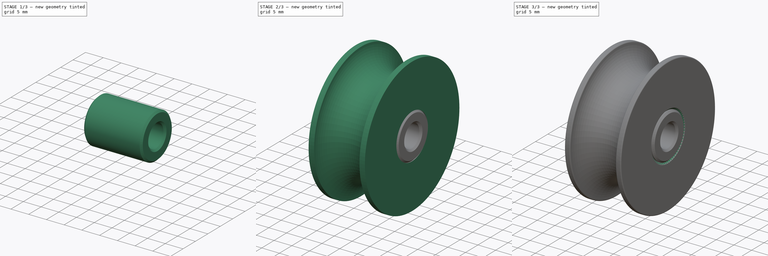
[diagram: build sequence overview — one tinted view per stage of 3, left to right]
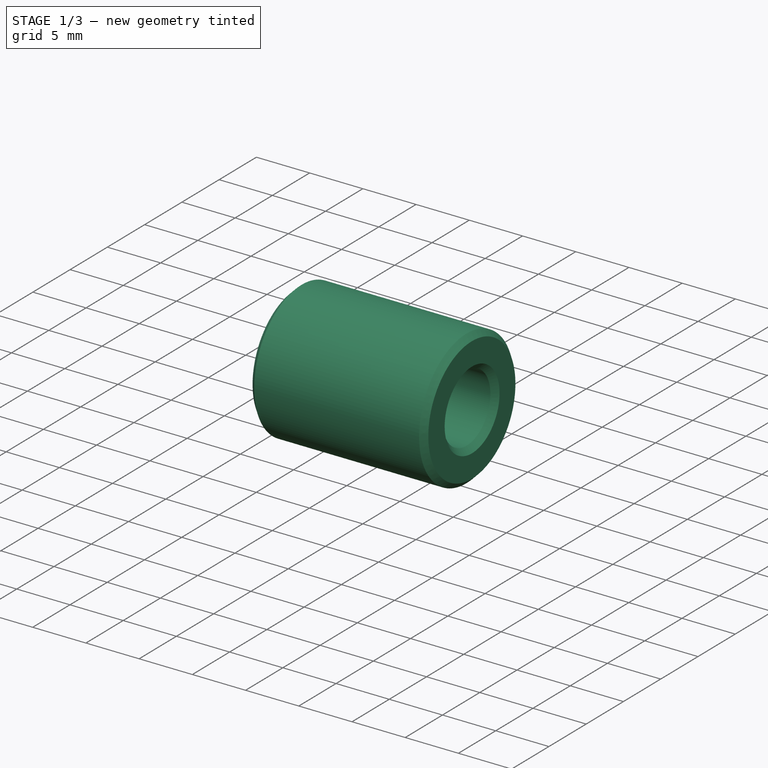
[diagram: stage 1 of 3 — iso view after this stage's code; geometry added in this stage tinted green]
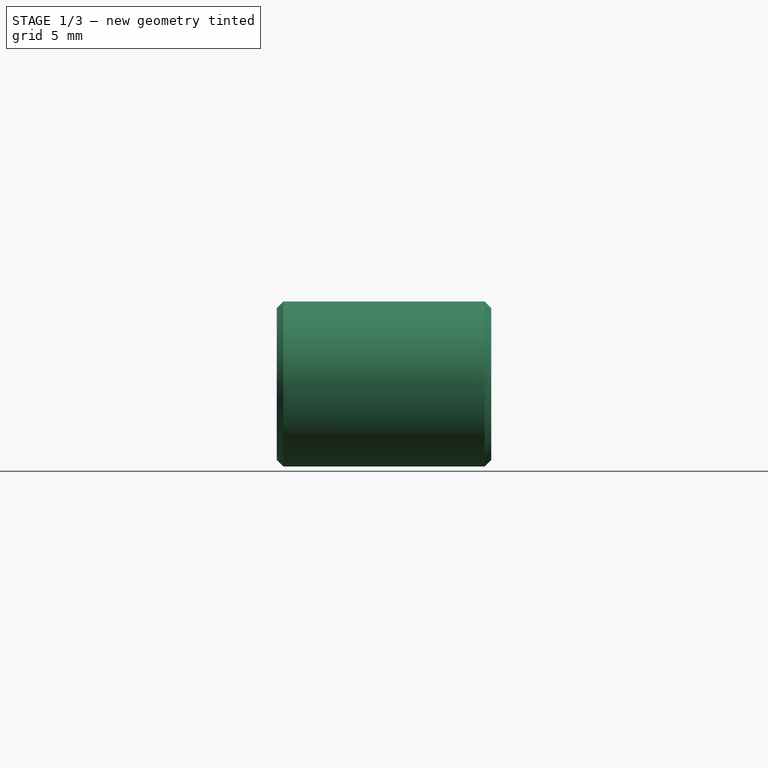
[diagram: stage 1 of 3 — front view after this stage's code; geometry added in this stage tinted green]
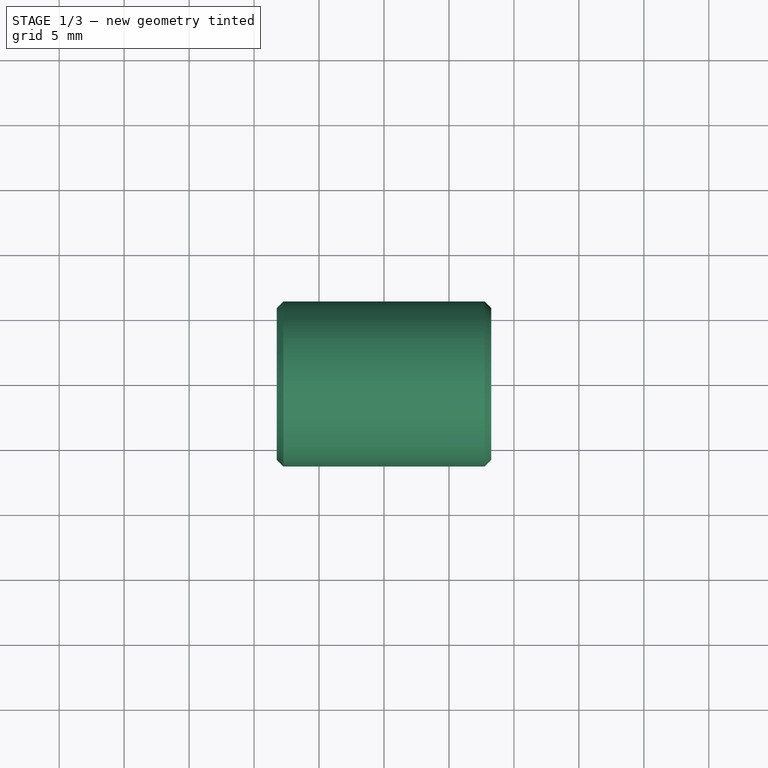
[diagram: stage 1 of 3 — top view after this stage's code; geometry added in this stage tinted green]
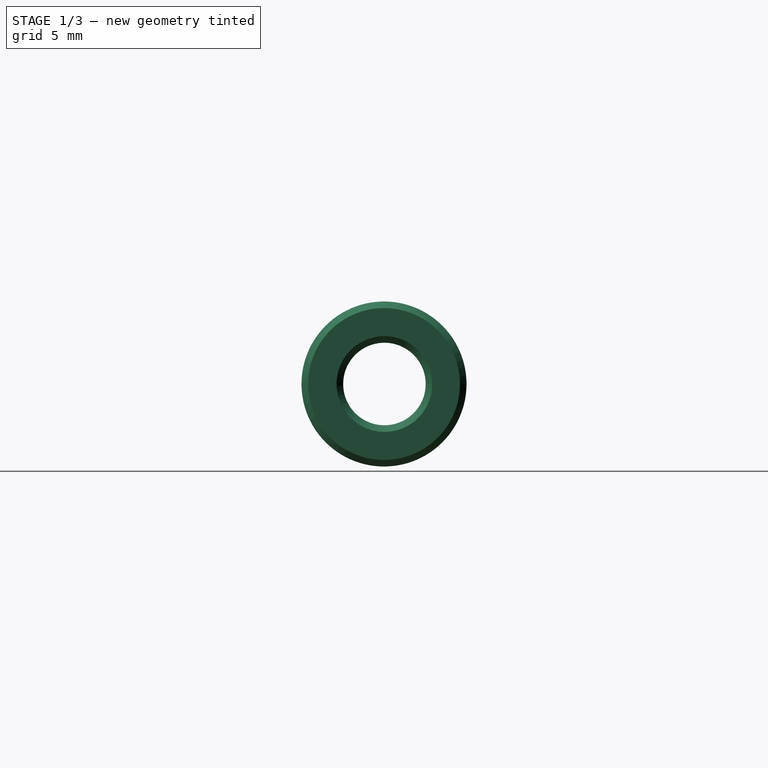
[diagram: stage 1 of 3 — right view after this stage's code; geometry added in this stage tinted green]
FCSTD DOCUMENT  (FreeCAD 0.19R)
Label: deck_organizer_sheave12
License: All rights reserved
LicenseURL: http://en.wikipedia.org/wiki/All_rights_reserved
objects: Sketcher::SketchObject×2, PartDesign::Chamfer×2, PartDesign::Body×2, PartDesign::Revolution×1, PartDesign::Fillet×1, PartDesign::Pad×1, App::LinkGroup×1
note: 14 computed .brp shape members not serialized (recipe doc carries the construction recipe); baked Part::Feature solids carry a one-line shape summary decoded from their .brp

FEATURE [PartDesign::Body] Body  label="SHEAVE"
  Group = -> [Sketch,Revolution,Chamfer,Fillet]
  Origin = -> Origin
  Placement = pos=(0,0,0) rot=(0,1,0;1.5708rad)
  Tip = -> Fillet
FEATURE [Sketcher::SketchObject] Sketch001
  FullyConstrained = false
  MapMode = 5
  Placement = pos=(0,0,0) rot=(0.57735,0.57735,0.57735;2.0944rad)
  Support = -> [YZ_Plane001]
  sketch-geometry (2):
    g0: Circle CenterX=0 CenterY=0 CenterZ=0 NormalX=0 NormalY=0 NormalZ=1 AngleXU=0 Radius=6.35
    g1: Circle CenterX=0.032829 CenterY=0 CenterZ=0 NormalX=0 NormalY=0 NormalZ=1 AngleXU=0 Radius=3.175
  constraints (4):
    c: Coincident(g0,g-1)
    c: PointOnObject(g1,g-1)
    c: Diameter(g0) = 12.7
    c: Diameter(g1) = 6.35
FEATURE [PartDesign::Pad] Pad
  Direction = (1,1,1)
  Length = 16.51
  Length2 = 99.9998
  Midplane = true
  Placement = pos=(0,0,0) rot=(0.57735,0.57735,0.57735;2.0944rad)
  Profile = -> Sketch001
  Type = 0
FEATURE [PartDesign::Chamfer] Chamfer001
  Angle = 45
  Base = -> Pad [Edge5,Edge2,Edge3,Edge6]
  BaseFeature = -> Pad
  ChamferType = 0
  FlipDirection = false
  Placement = pos=(0,0,0) rot=(0.57735,0.57735,0.57735;2.0944rad)
  Size = 0.508
  Size2 = 1
  SupportTransform = false
FEATURE [PartDesign::Body] Body001  label="BUSHING"
  Group = -> [Sketch001,Pad,Chamfer001]
  Origin = -> Origin001
  Placement = pos=(0,0,0) rot=(0,1,0;1.5708rad)
  Tip = -> Chamfer001
FEATURE [App::LinkGroup] LinkGroup
  ElementList = -> [Body,Body001]
  LinkMode = 0
  Placement = pos=(0,0,0) rot=(0,1,0;1.5708rad)
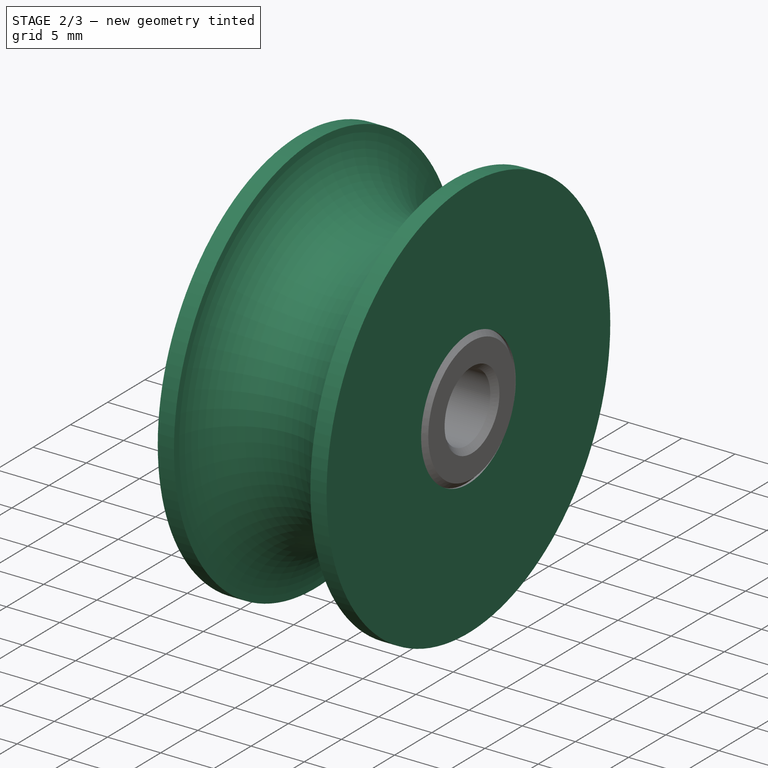
[diagram: stage 2 of 3 — iso view after this stage's code; geometry added in this stage tinted green]
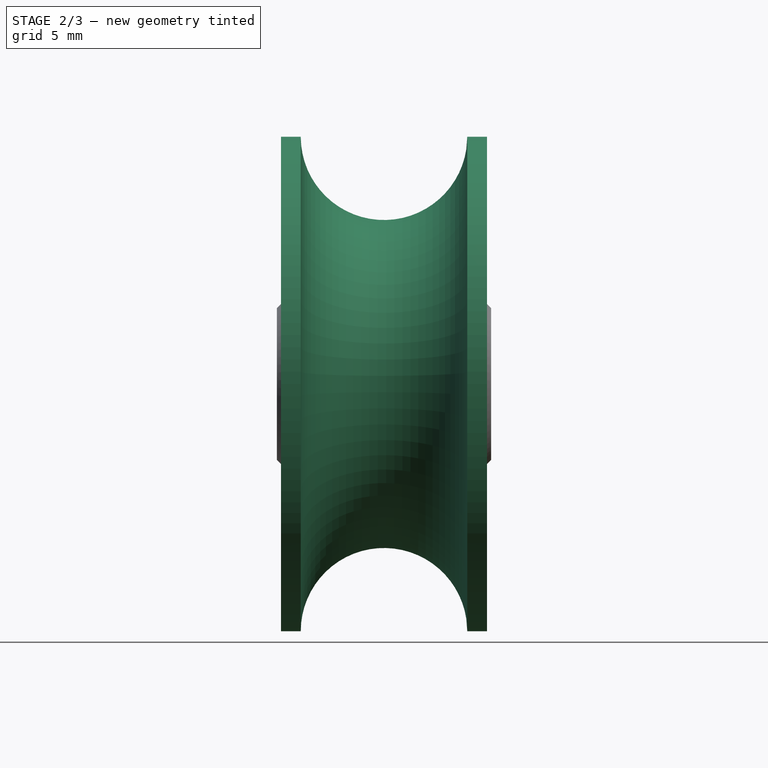
[diagram: stage 2 of 3 — front view after this stage's code; geometry added in this stage tinted green]
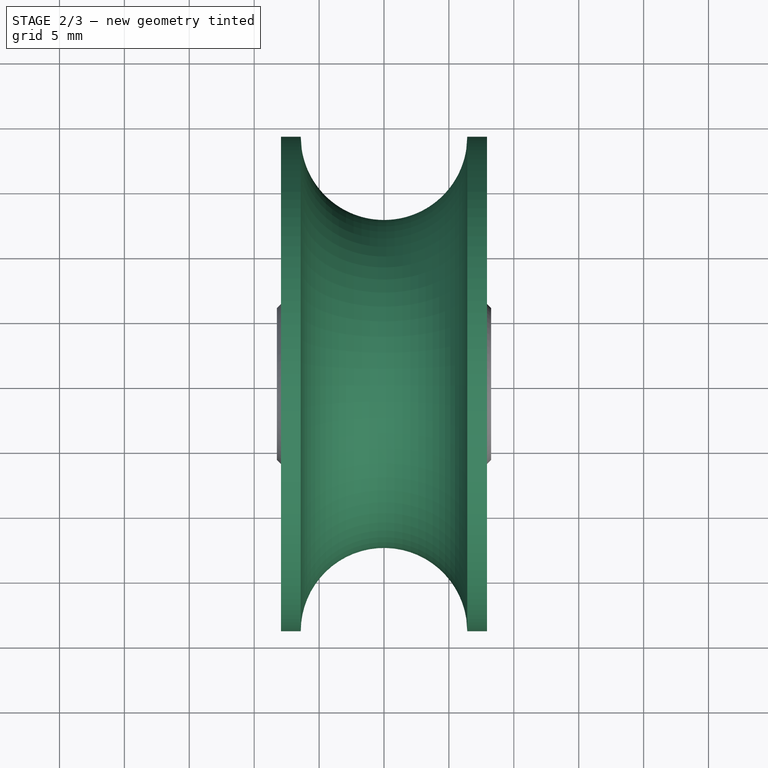
[diagram: stage 2 of 3 — top view after this stage's code; geometry added in this stage tinted green]
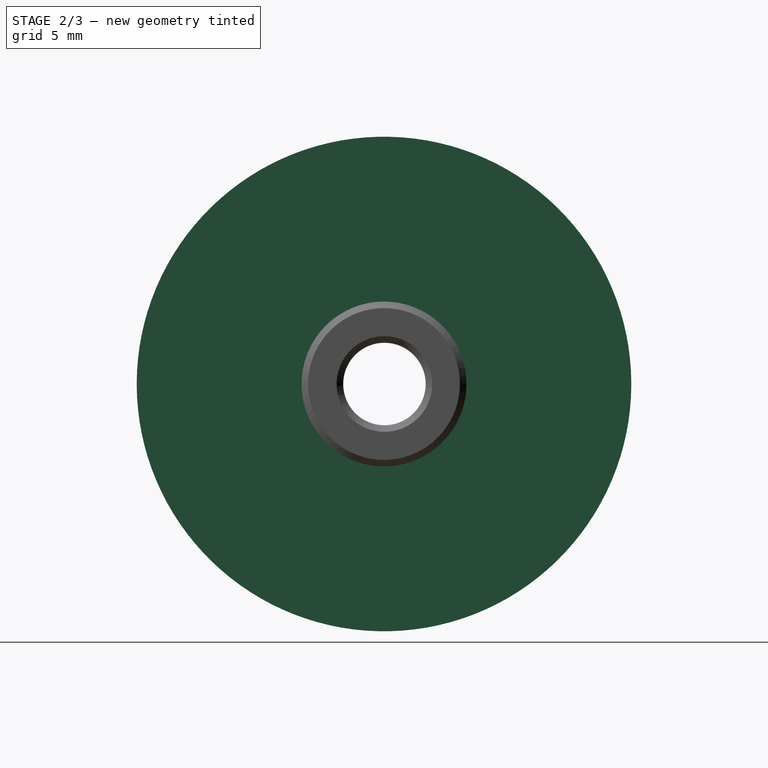
[diagram: stage 2 of 3 — right view after this stage's code; geometry added in this stage tinted green]
FEATURE [Sketcher::SketchObject] Sketch
  FullyConstrained = true
  MapMode = 5
  Support = -> [XY_Plane]
  sketch-geometry (6):
    g0: LineSegment StartX=7.9375 StartY=6.35 StartZ=0 EndX=7.9375 EndY=19.05 EndZ=0
    g1: LineSegment StartX=-7.9375 StartY=19.05 StartZ=0 EndX=-7.9375 EndY=6.35 EndZ=0
    g2: LineSegment StartX=-7.9375 StartY=19.05 StartZ=0 EndX=-6.4135 EndY=19.05 EndZ=0
    g3: LineSegment StartX=7.9375 StartY=19.05 StartZ=0 EndX=6.4135 EndY=19.05 EndZ=0
    g4: ArcOfCircle CenterX=-2e-16 CenterY=19.05 CenterZ=0 NormalX=0 NormalY=0 NormalZ=1 AngleXU=0 Radius=6.4135 StartAngle=3.14159 EndAngle=6.28319
    g5: LineSegment StartX=-7.9375 StartY=6.35 StartZ=0 EndX=7.9375 EndY=6.35 EndZ=0
  constraints (20):
    c: Vertical(g0)
    c: Vertical(g1)
    c: Coincident(g2,g1)
    c: Coincident(g3,g0)
    c: Horizontal(g2)
    c: Horizontal(g3)
    c: Equal(g2,g3)
    c: Distance(g2,g1) = 1.524
    c: Coincident(g4,g2)
    c: Coincident(g4,g3)
    c: Horizontal(g4,g2)
    c: Distance(g2,g3) = 12.827
    c: Equal(g0,g1)
    c: Coincident(g5,g1)
    c: Coincident(g5,g0)
    c: Horizontal(g5)
    c: Distance(g5) = 15.875
    c: DistanceX(g1,g-1) = 7.9375
    c: DistanceY(g-1,g0) = 6.35
    c: DistanceY(g-1,g0) = 19.05
FEATURE [PartDesign::Revolution] Revolution
  Angle = 360
  Axis = (1,0,0)
  Base = (0,0,0)
  Profile = -> Sketch
  ReferenceAxis = -> X_Axis
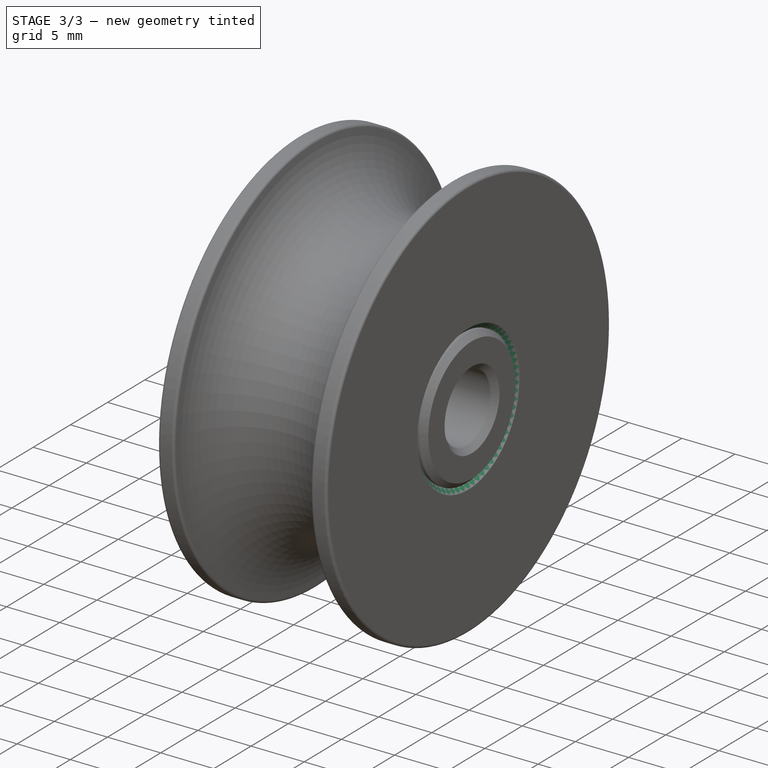
[diagram: stage 3 of 3 — iso view after this stage's code; geometry added in this stage tinted green]
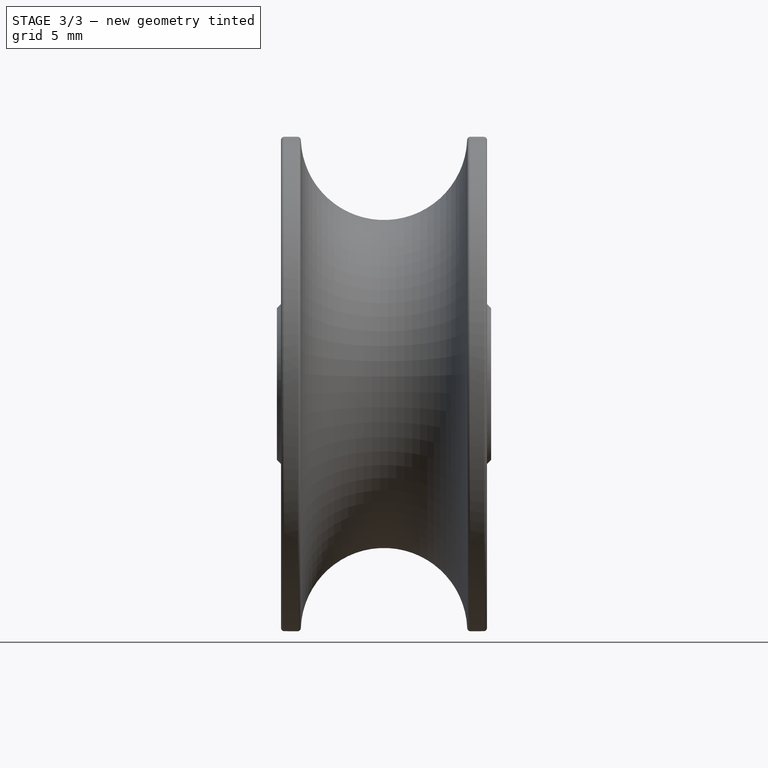
[diagram: stage 3 of 3 — front view after this stage's code; geometry added in this stage tinted green]
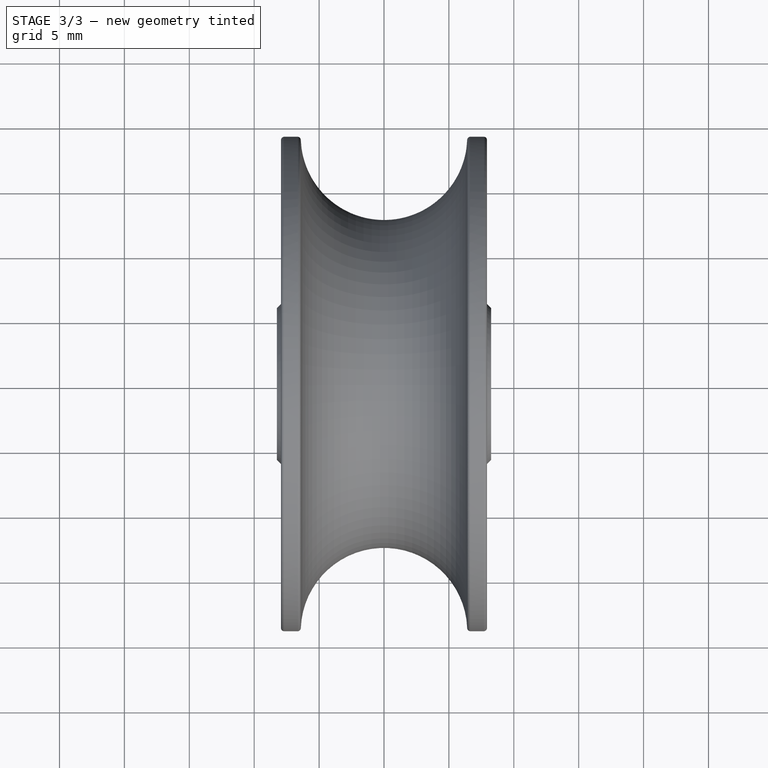
[diagram: stage 3 of 3 — top view after this stage's code; geometry added in this stage tinted green]
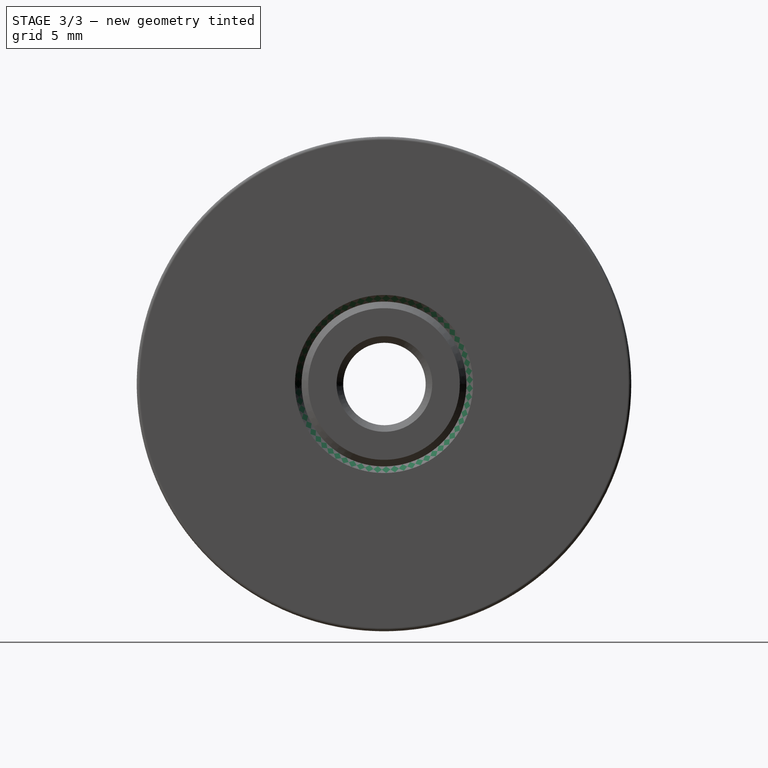
[diagram: stage 3 of 3 — right view after this stage's code; geometry added in this stage tinted green]
FEATURE [PartDesign::Chamfer] Chamfer
  Angle = 45
  Base = -> Revolution [Face2]
  BaseFeature = -> Revolution
  ChamferType = 0
  FlipDirection = false
  Size = 0.508
  Size2 = 1
  SupportTransform = false
FEATURE [PartDesign::Fillet] Fillet
  Base = -> Chamfer [Edge13,Edge9,Edge5,Edge2]
  BaseFeature = -> Chamfer
  Radius = 0.254
  SupportTransform = false
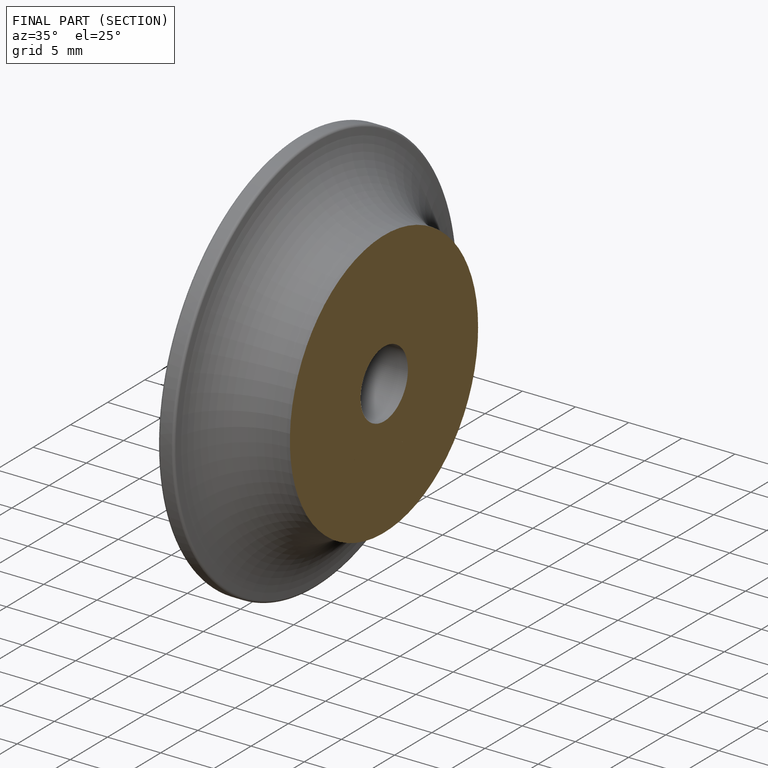
[diagram: finished part — half-section view (interior)]
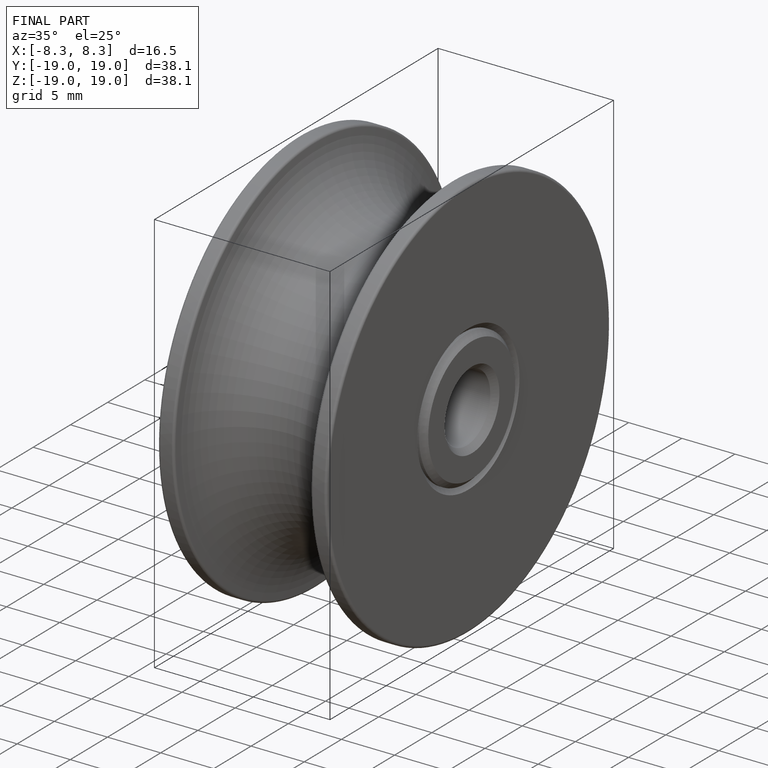
[diagram: finished part — iso view with bounding-box wireframe]
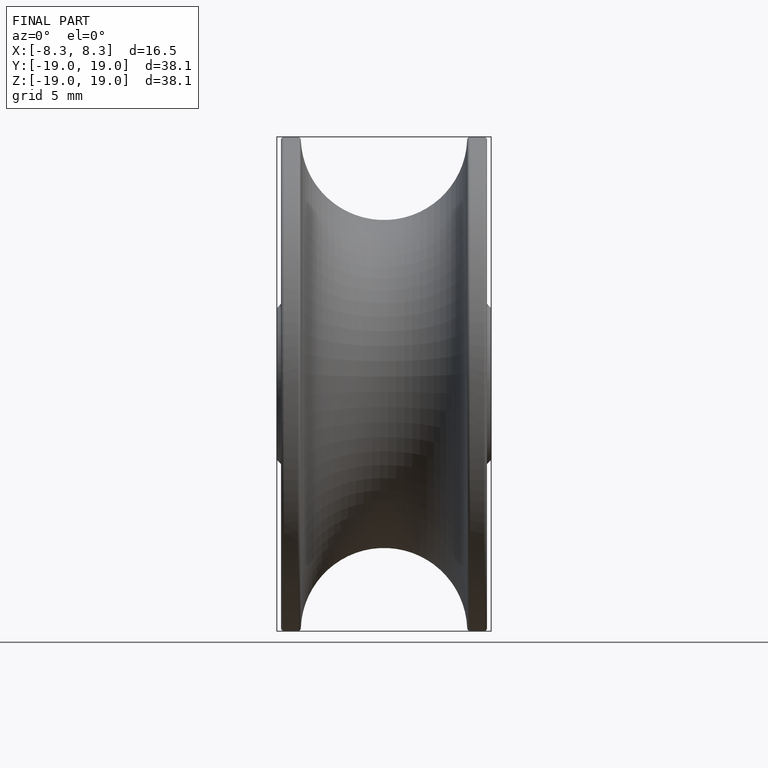
[diagram: finished part — front view with bounding-box wireframe]
